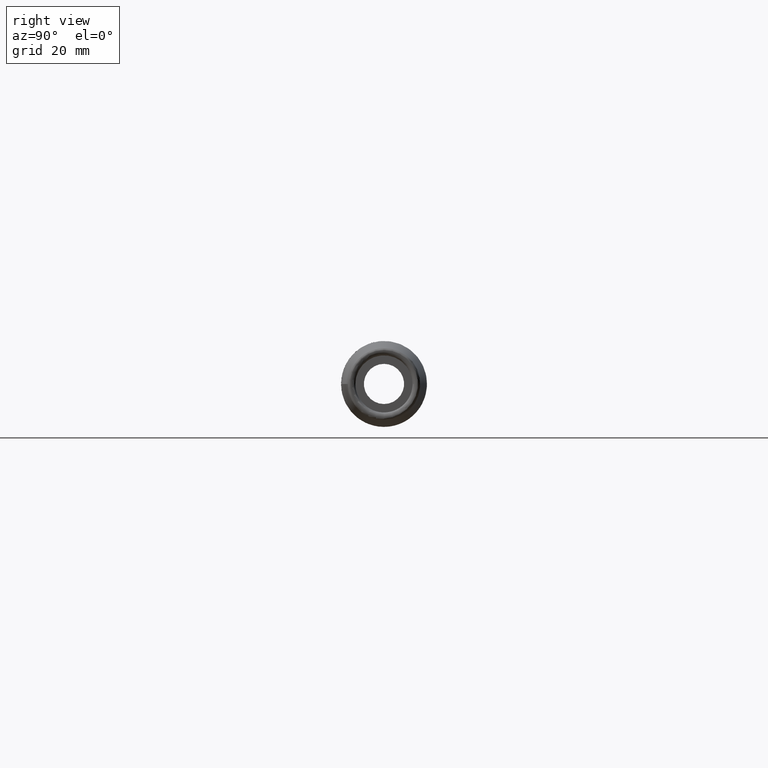
[diagram: clean part render]
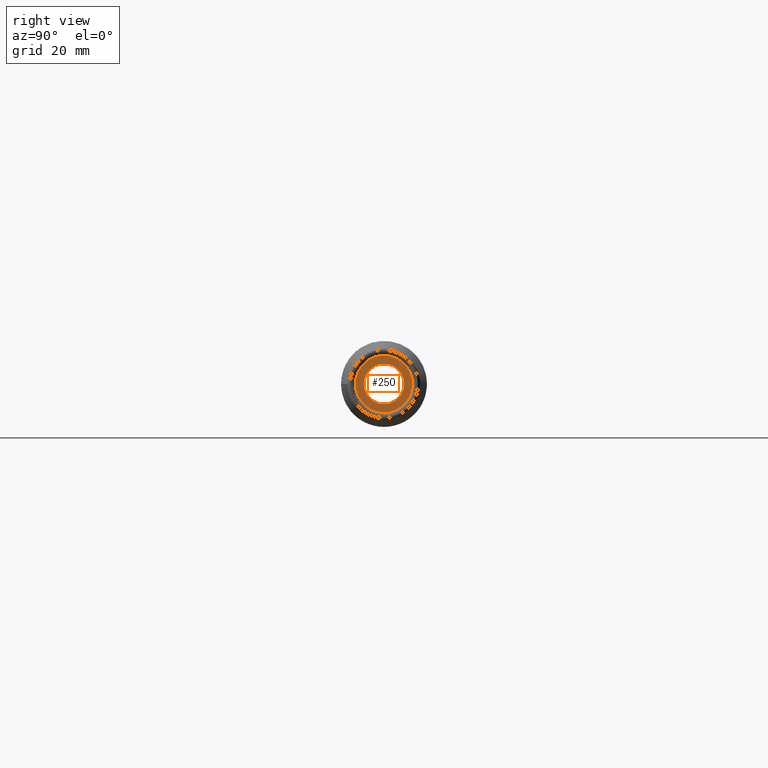
[diagram: same view with one face highlighted and labeled with its STEP entity id]
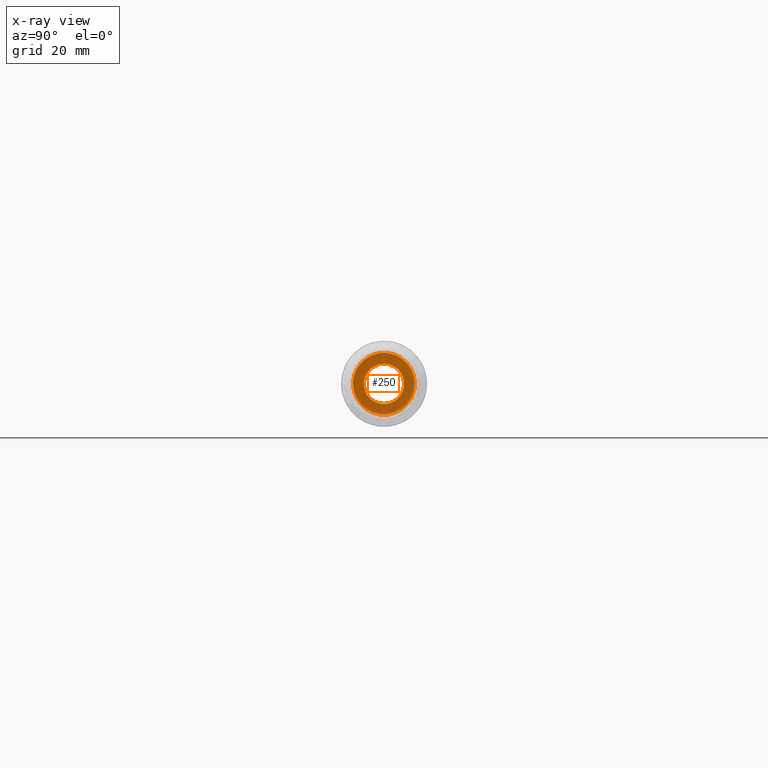
[diagram: x-ray of the same camera — body ghosted, the highlighted face saturated]
A machine part, right view. The second image highlights one B-rep face of the part: STEP entity #250.
The next image is the same camera in x-ray: the body ghosted, the highlighted face saturated — about 25% of this face is hidden behind the body in this view.
In plain terms, the highlighted planar face has unit normal (-1, 0, 0).
Its self-contained STEP definition (entity closure, byte-faithful):
#18=FACE_BOUND('',#65,.T.);
#22=PLANE('',#312);
#45=FACE_OUTER_BOUND('',#64,.T.);
#64=EDGE_LOOP('',(#222));
#65=EDGE_LOOP('',(#223));
#88=CIRCLE('',#282,4.458734);
#105=CIRCLE('',#309,6.84999999999999);
#114=VERTEX_POINT('',#424);
#128=VERTEX_POINT('',#470);
#137=EDGE_CURVE('',#114,#114,#88,.T.);
#159=EDGE_CURVE('',#128,#128,#105,.T.);
#222=ORIENTED_EDGE('',*,*,#159,.T.);
#223=ORIENTED_EDGE('',*,*,#137,.T.);
#250=ADVANCED_FACE('',(#45,#18),#22,.F.);
#282=AXIS2_PLACEMENT_3D('',#425,#333,#334);
#309=AXIS2_PLACEMENT_3D('',#471,#392,#393);
#312=AXIS2_PLACEMENT_3D('',#476,#399,#400);
#333=DIRECTION('center_axis',(-1.,0.,0.));
#334=DIRECTION('ref_axis',(0.,0.,-1.));
#392=DIRECTION('center_axis',(1.,0.,0.));
#393=DIRECTION('ref_axis',(0.,0.,-1.));
#399=DIRECTION('center_axis',(-1.,0.,0.));
#400=DIRECTION('ref_axis',(0.,0.,1.));
#424=CARTESIAN_POINT('',(-49.,-5.46037432134947E-16,4.458734));
#425=CARTESIAN_POINT('Origin',(-49.,0.,0.));
#470=CARTESIAN_POINT('',(-49.,-6.84999999999999,-8.38883057415936E-16));
#471=CARTESIAN_POINT('Origin',(-49.,0.,0.));
#476=CARTESIAN_POINT('Origin',(-49.,6.84999999999999,0.));